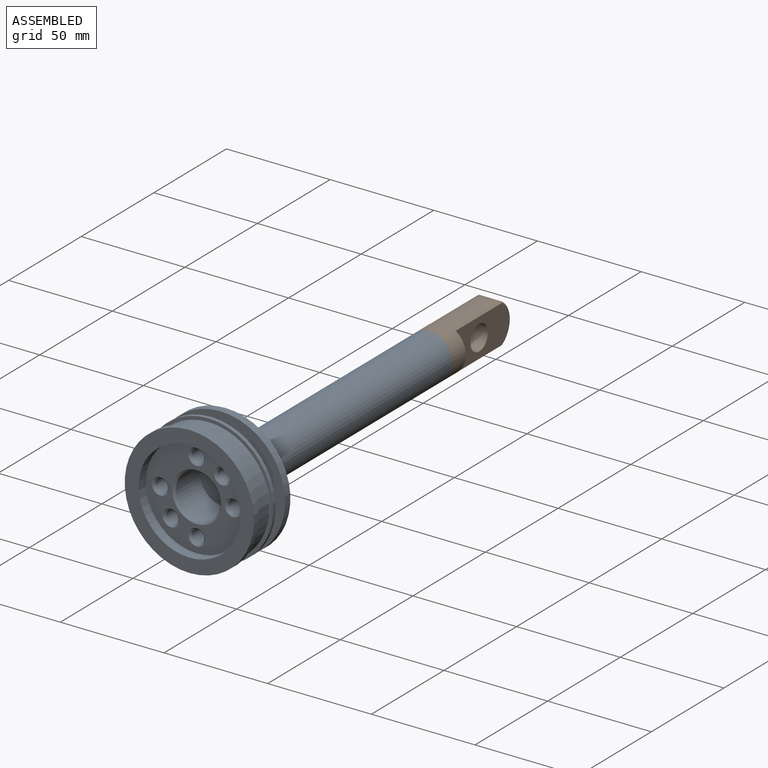
[diagram: assembled view]
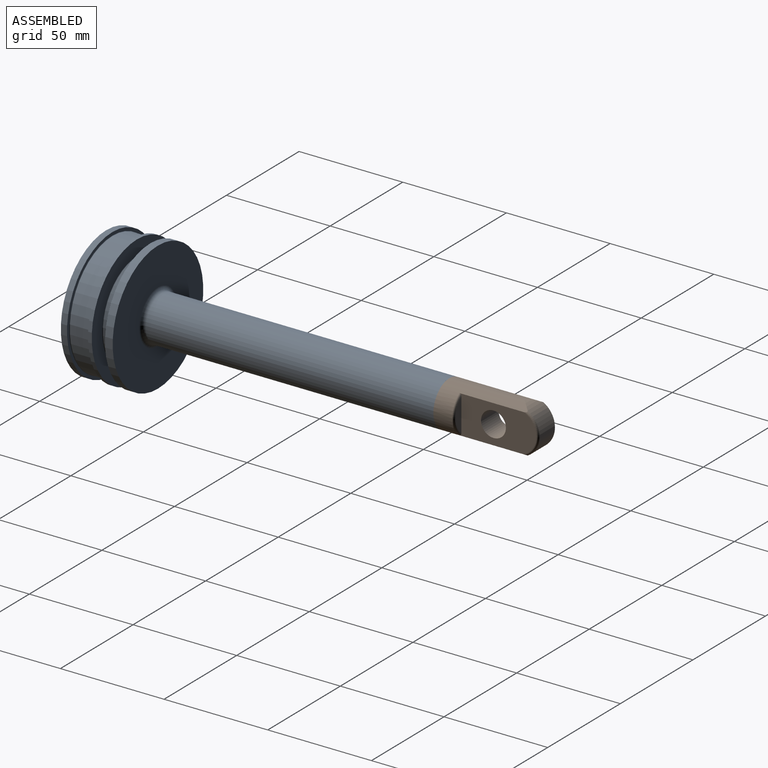
[diagram: assembled view, second angle]
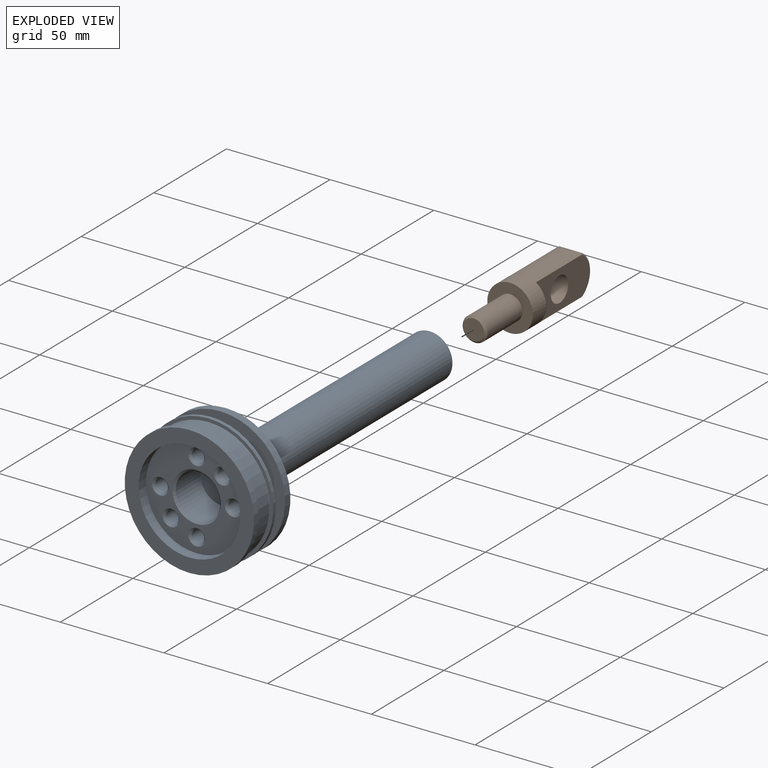
[diagram: exploded view]
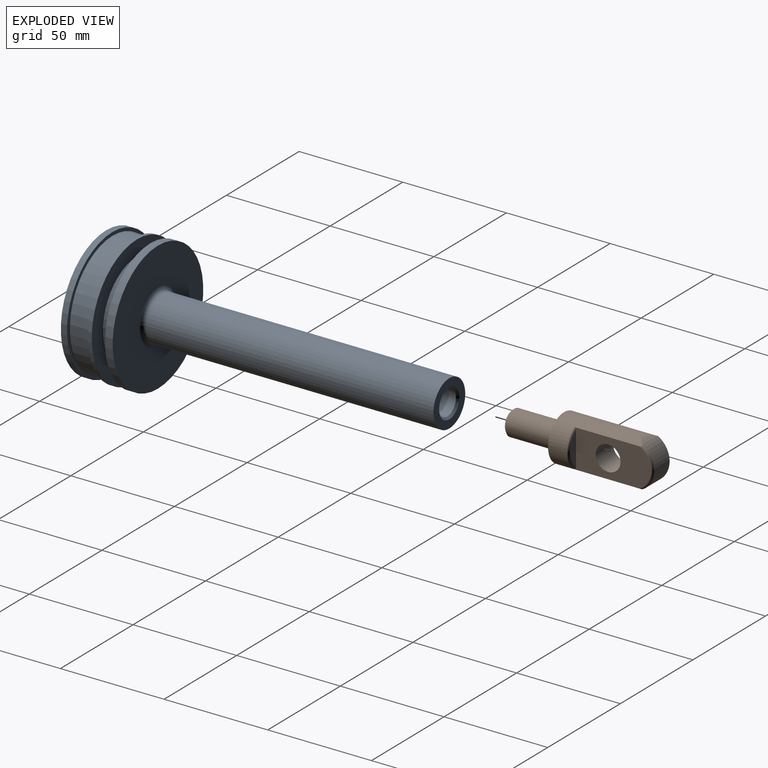
[diagram: exploded view, second angle]
ASSEMBLY  parts=2 mates=2
PART A: 45 faces, bbox 64.6x165.5x64.6 mm
  f0: cylinder r=31.19mm len=62.38mm, axis (0,1,0), area 587.9mm2, adj f1,f2
  f1: plane 62.38x62.38mm, normal (0,-1,0), area 1170.5mm2, adj f0,f22
  f2: plane 62.38x62.38mm, normal (0,1,0), area 285mm2, adj f0,f14
  f3: cylinder r=29.5mm len=59mm, axis (0,-1,0), area 1797.9mm2, adj f14,f15
  f4: cylinder r=31.2mm len=62.4mm, axis (0,-1,0), area 352.9mm2, adj f5,f6
  f5: plane 62.4x62.4mm, normal (0,1,0), area 1256.1mm2, adj f4,f16
  f6: plane 62.4x62.4mm, normal (0,-1,0), area 287mm2, adj f4,f15
  f7: cylinder r=23.75mm len=47.5mm, axis (0,-1,0), area 895.4mm2, adj f16,f17
  f8: cylinder r=31.19mm len=62.38mm, axis (0,-1,0), area 725.1mm2, adj f9,f10
  f9: plane 62.38x62.38mm, normal (0,1,0), area 2527.3mm2, adj f8,f13
  f10: plane 62.38x62.38mm, normal (0,-1,0), area 1254.2mm2, adj f8,f17
  f11: cylinder r=10.97mm len=138.5mm, axis (0,-1,0), area 9550.7mm2, adj f12,f13
  f12: plane 21.95x21.95mm, normal (0,1,0), area 224.5mm2, adj f11,f21
  f13: torus R=12.97mm, axis (0,1,0), area 231mm2, adj f9,f11
  f14: torus R=29.7mm, axis (0,-1,0), area 58.4mm2, adj f2,f3
  f15: torus R=29.7mm, axis (0,1,0), area 58.4mm2, adj f3,f6
  f16: torus R=23.95mm, axis (0,1,0), area 47mm2, adj f5,f7
  f17: torus R=23.95mm, axis (0,1,0), area 47mm2, adj f7,f10
  f18: cylinder r=6mm len=28mm, axis (0,1,0), area 1055.6mm2, adj f20,f21
  f19: plane 10x10mm, normal (0,1,0), area 78.5mm2, adj f20
  f20: cone r=5mm half-angle=45deg, axis (0,1,0), area 48.9mm2, adj f18,f19
  f21: cone r=6mm half-angle=45deg, axis (0,1,0), area 57.8mm2, adj f12,f18
  f22: cylinder r=24.5mm len=49mm, axis (0,-1,0), area 769.7mm2, adj f1,f23
  f23: plane 49x49mm, normal (0,-1,0), area 1150.4mm2, adj f22,f38,f39,f40,f41,f42,f43,f44
  f24: cylinder r=10.75mm len=21.5mm, axis (0,-1,0), area 1148.3mm2, adj f25,f38
  f25: plane 21.5x21.5mm, normal (0,-1,0), area 363.1mm2, adj f24
  f26: cylinder r=3mm len=14mm, axis (0,-1,0), area 263.9mm2, adj f27,f39
  f27: plane 6x6mm, normal (0,-1,0), area 28.3mm2, adj f26
  f28: cylinder r=3mm len=14mm, axis (0,-1,0), area 263.9mm2, adj f29,f43
  f29: plane 6x6mm, normal (0,-1,0), area 28.3mm2, adj f28
  f30: cylinder r=3mm len=14mm, axis (0,-1,0), area 263.9mm2, adj f31,f41
  f31: plane 6x6mm, normal (0,-1,0), area 28.3mm2, adj f30
  f32: cylinder r=3mm len=14mm, axis (0,-1,0), area 263.9mm2, adj f33,f44
  f33: plane 6x6mm, normal (0,-1,0), area 28.3mm2, adj f32
  f34: cylinder r=3mm len=14mm, axis (0,-1,0), area 263.9mm2, adj f35,f42
  f35: plane 6x6mm, normal (0,-1,0), area 28.3mm2, adj f34
  f36: cylinder r=3mm len=14mm, axis (0,-1,0), area 263.9mm2, adj f37,f40
  f37: plane 6x6mm, normal (0,-1,0), area 28.3mm2, adj f36
  f38: cone r=10.75mm half-angle=45deg, axis (0,-1,0), area 100mm2, adj f23,f24
  f39: cone r=3mm half-angle=45deg, axis (0,-1,0), area 31.1mm2, adj f23,f26
  f40: cone r=3mm half-angle=45deg, axis (0,-1,0), area 31.1mm2, adj f23,f36
  f41: cone r=3mm half-angle=45deg, axis (0,-1,0), area 31.1mm2, adj f23,f30
  f42: cone r=3mm half-angle=45deg, axis (0,-1,0), area 31.1mm2, adj f23,f34
  f43: cone r=3mm half-angle=45deg, axis (0,-1,0), area 31.1mm2, adj f23,f28
  f44: cone r=3mm half-angle=45deg, axis (0,-1,0), area 31.1mm2, adj f23,f32
PART B: 15 faces, bbox 23.8x73.1x22 mm
  f0: cylinder r=10.97mm len=41.48mm, axis (0,1,0), area 1387.9mm2, adj f1,f2,f7,f9,f11,f12,f13,f14
  f1: plane 37.22x18.38mm, normal (1,0,0), area 522.1mm2, adj f0,f8,f10,f11,f13
  f2: plane 21.95x21.95mm, normal (0,-1,0), area 265.3mm2, adj f0,f3
  f3: cylinder r=6mm len=24mm, axis (0,1,0), area 904.8mm2, adj f2,f5
  f4: plane 10x10mm, normal (0,-1,0), area 78.5mm2, adj f5
  f5: cone r=5mm half-angle=45deg, axis (0,1,0), area 48.9mm2, adj f3,f4
  f6: plane 15.94x3.98mm, normal (0,1,0), area 44.3mm2, adj f7,f14
  f7: plane 37.22x18.38mm, normal (-1,0,0), area 522.1mm2, adj f0,f6,f10,f12,f14
  f8: plane 15.94x3.98mm, normal (0,1,0), area 44.3mm2, adj f1,f13
  f9: cylinder r=10.97mm len=21.95mm, axis (-1,0,0), area 292.9mm2, adj f0,f11,f12
  f10: cylinder r=6mm len=12mm, axis (-1,0,0), area 452.4mm2, adj f1,f7
  f11: torus R=9.97mm, axis (1,0,0), area 36.4mm2, adj f0,f1,f9
  f12: torus R=9.97mm, axis (1,0,0), area 36.4mm2, adj f0,f7,f9
  f13: torus R=9.97mm, axis (0,1,0), area 32.3mm2, adj f0,f1,f8
  f14: torus R=9.97mm, axis (0,1,0), area 32.3mm2, adj f0,f6,f7
PLACE A t=(319.69,-186.19,110.64)mm
PLACE B t=(319.69,26.31,110.64)mm
MATE slider A.f18 <-> B.f3  axis (0,1,0) through (319.69,-24.69,110.64)mm
MATE planar B.f0 <-> A.f11  axis (0,-1,0) through (319.69,-23.69,110.64)mm
